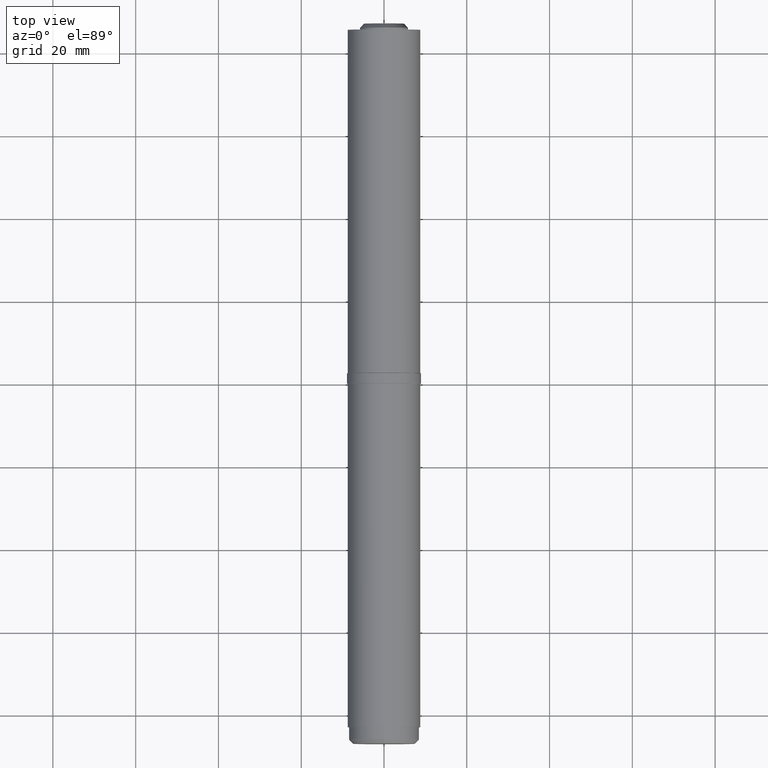
[diagram: clean part render]
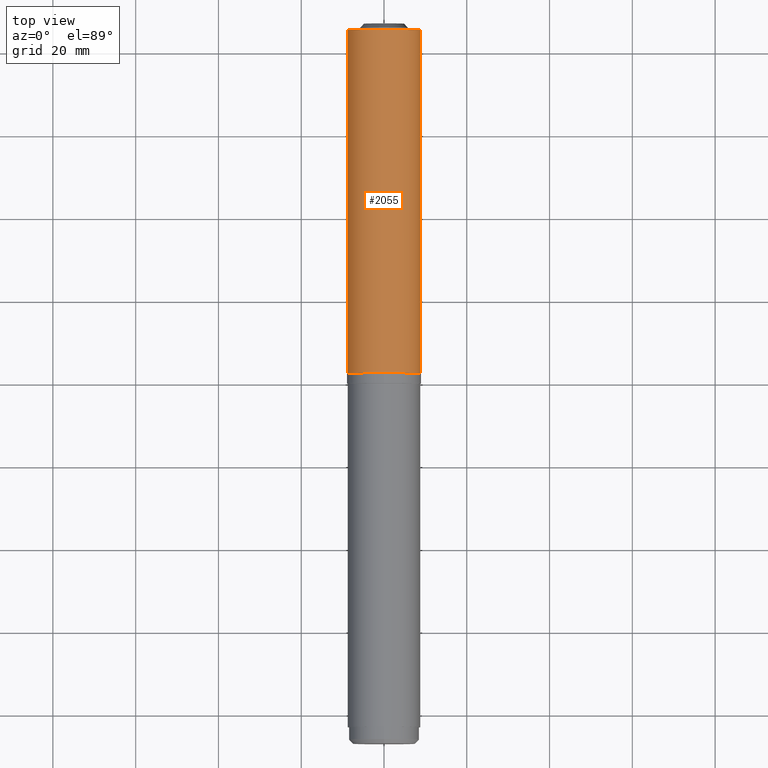
[diagram: same view with one face highlighted and labeled with its STEP entity id]
A machine part, top view. The second image highlights one B-rep face of the part: STEP entity #2055.
In plain terms, the highlighted cylindrical surface (edge-blend (fillet) strip) has radius 8.8 mm, axis along (-0, -1, -0).
Its self-contained STEP definition (entity closure, byte-faithful):
#44 = FACE_OUTER_BOUND ( 'NONE', #1287, .T. ) ;
#198 = ORIENTED_EDGE ( 'NONE', *, *, #13632, .F. ) ;
#787 = DIRECTION ( 'NONE',  ( 0.000000000000000000, 0.000000000000000000, 1.000000000000000000 ) ) ;
#966 = CIRCLE ( 'NONE', #11310, 8.800000000000000711 ) ;
#1097 = LINE ( 'NONE', #2771, #7908 ) ;
#1126 = CARTESIAN_POINT ( 'NONE',  ( 0.000000000000000000, 41.50000000000000000, 0.000000000000000000 ) ) ;
#1287 = EDGE_LOOP ( 'NONE', ( #10165, #198, #13362, #3842 ) ) ;
#1889 = DIRECTION ( 'NONE',  ( 0.000000000000000000, 1.000000000000000000, 0.000000000000000000 ) ) ;
#2055 = ADVANCED_FACE ( 'NONE', ( #44 ), #8001, .T. ) ;
#2107 = DIRECTION ( 'NONE',  ( 0.000000000000000000, 1.000000000000000000, 0.000000000000000000 ) ) ;
#2771 = CARTESIAN_POINT ( 'NONE',  ( 3.707407407407407263, 41.50000000000000000, -7.980922898731742876 ) ) ;
#2876 = CARTESIAN_POINT ( 'NONE',  ( 3.707407407407407263, 41.50000000000000000, -7.980922898731742876 ) ) ;
#2890 = DIRECTION ( 'NONE',  ( -0.000000000000000000, -1.000000000000000000, -0.000000000000000000 ) ) ;
#2916 = CARTESIAN_POINT ( 'NONE',  ( 0.000000000000000000, -41.50000000000000000, 0.000000000000000000 ) ) ;
#3368 = VERTEX_POINT ( 'NONE', #10782 ) ;
#3842 = ORIENTED_EDGE ( 'NONE', *, *, #9147, .T. ) ;
#3856 = CIRCLE ( 'NONE', #9181, 8.800000000000000711 ) ;
#3960 = DIRECTION ( 'NONE',  ( -0.000000000000000000, -1.000000000000000000, -0.000000000000000000 ) ) ;
#4141 = LINE ( 'NONE', #9420, #6768 ) ;
#4166 = DIRECTION ( 'NONE',  ( -0.000000000000000000, -1.000000000000000000, -0.000000000000000000 ) ) ;
#4962 = CARTESIAN_POINT ( 'NONE',  ( -3.707407407407405486, 41.50000000000000000, -7.980922898731744652 ) ) ;
#6768 = VECTOR ( 'NONE', #4166, 1000.000000000000000 ) ;
#7045 = DIRECTION ( 'NONE',  ( 0.000000000000000000, 0.000000000000000000, -1.000000000000000000 ) ) ;
#7908 = VECTOR ( 'NONE', #2890, 1000.000000000000000 ) ;
#7912 = AXIS2_PLACEMENT_3D ( 'NONE', #9261, #3960, #7045 ) ;
#7951 = EDGE_CURVE ( 'NONE', #13646, #9514, #3856, .T. ) ;
#8001 = CYLINDRICAL_SURFACE ( 'NONE', #7912, 8.800000000000000711 ) ;
#8262 = VERTEX_POINT ( 'NONE', #12257 ) ;
#9147 = EDGE_CURVE ( 'NONE', #13646, #8262, #4141, .T. ) ;
#9181 = AXIS2_PLACEMENT_3D ( 'NONE', #1126, #2107, #10516 ) ;
#9261 = CARTESIAN_POINT ( 'NONE',  ( 0.000000000000000000, 41.50000000000000000, 0.000000000000000000 ) ) ;
#9420 = CARTESIAN_POINT ( 'NONE',  ( -3.707407407407405486, 41.50000000000000000, -7.980922898731744652 ) ) ;
#9514 = VERTEX_POINT ( 'NONE', #2876 ) ;
#10165 = ORIENTED_EDGE ( 'NONE', *, *, #11309, .T. ) ;
#10516 = DIRECTION ( 'NONE',  ( 0.000000000000000000, 0.000000000000000000, 1.000000000000000000 ) ) ;
#10782 = CARTESIAN_POINT ( 'NONE',  ( 3.707407407407407263, -41.50000000000000000, -7.980922898731742876 ) ) ;
#11309 = EDGE_CURVE ( 'NONE', #8262, #3368, #966, .T. ) ;
#11310 = AXIS2_PLACEMENT_3D ( 'NONE', #2916, #1889, #787 ) ;
#12257 = CARTESIAN_POINT ( 'NONE',  ( -3.707407407407405486, -41.50000000000000000, -7.980922898731744652 ) ) ;
#13362 = ORIENTED_EDGE ( 'NONE', *, *, #7951, .F. ) ;
#13632 = EDGE_CURVE ( 'NONE', #9514, #3368, #1097, .T. ) ;
#13646 = VERTEX_POINT ( 'NONE', #4962 ) ;